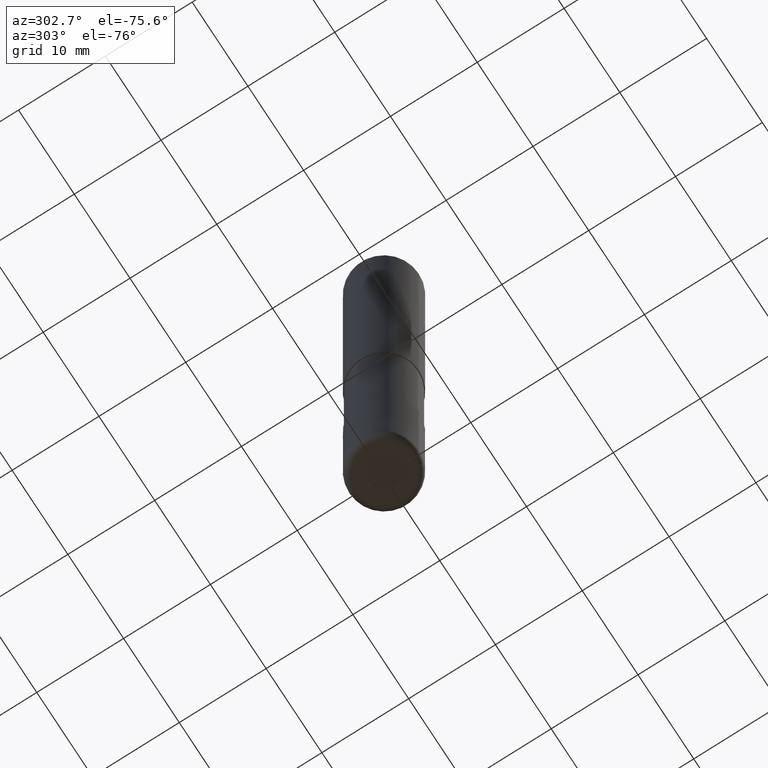
[diagram: clean part render]
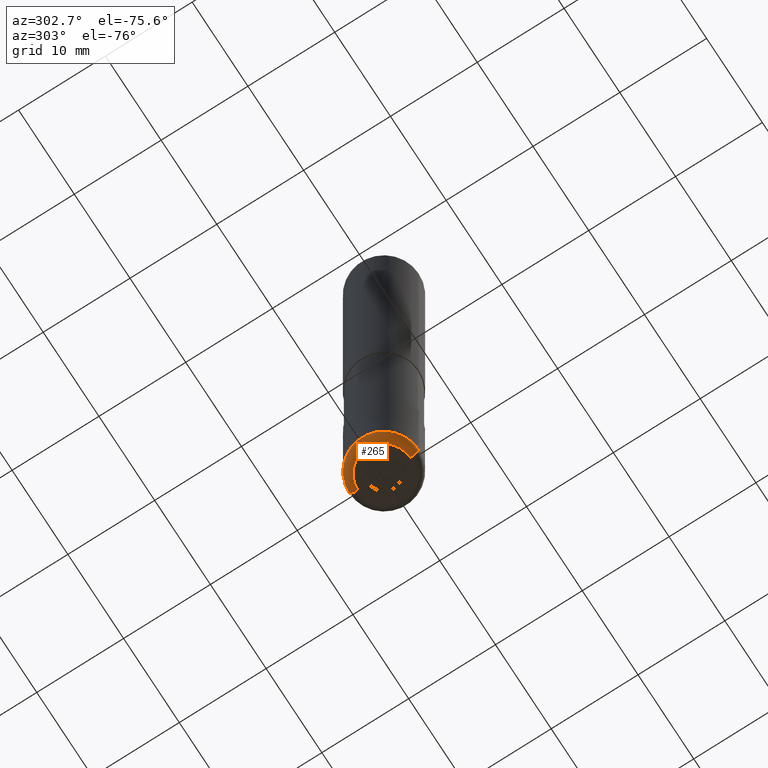
[diagram: same view with one face highlighted and labeled with its STEP entity id]
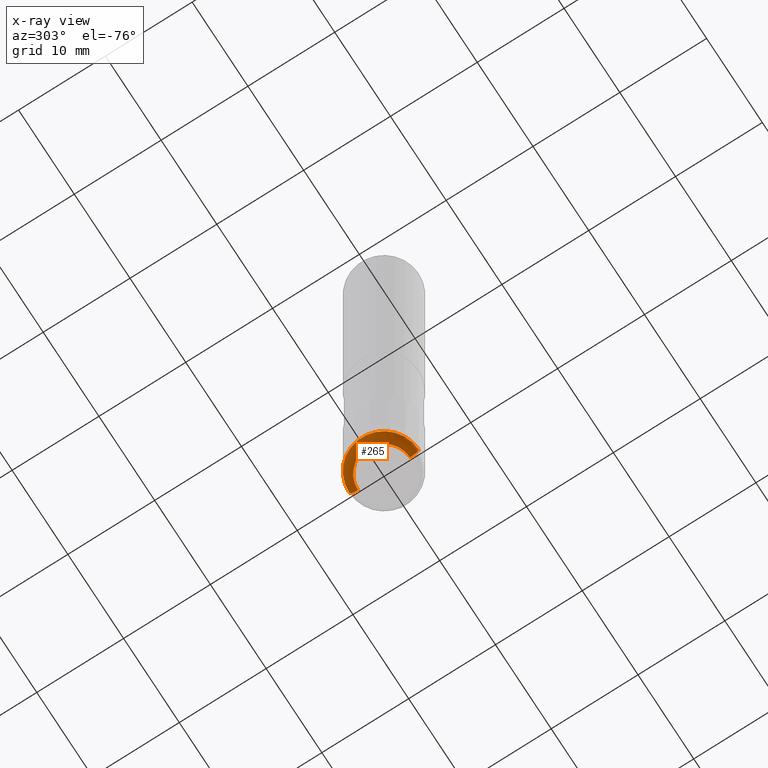
[diagram: x-ray of the same camera — body ghosted, the highlighted face saturated]
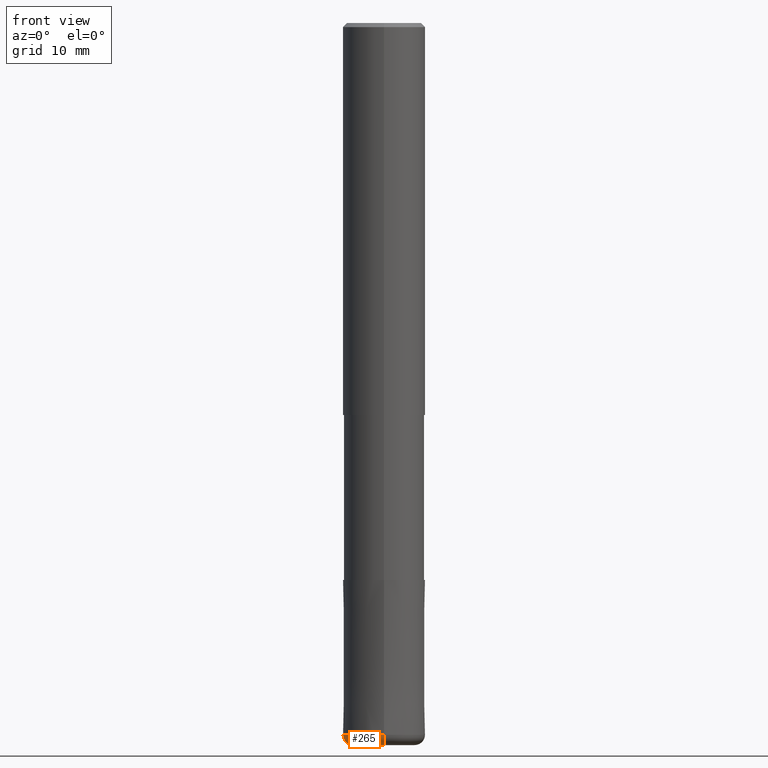
[diagram: same view with one face highlighted and labeled with its STEP entity id]
A machine part, auxiliary view. The second image highlights one B-rep face of the part: STEP entity #265.
The next image is the same camera in x-ray: the body ghosted, the highlighted face saturated — about 0% of this face is hidden behind the body in this view.
A second angle (front view) of the same face is appended — the face is thin or edge-on in the first view.
In plain terms, the highlighted toroidal blend (fillet) surface has major radius 3 mm and minor (blend) radius 1 mm.
Its self-contained STEP definition (entity closure, byte-faithful):
#125=EDGE_CURVE('',#189,#143,#313,.T.);
#143=VERTEX_POINT('',#332);
#189=VERTEX_POINT('',#386);
#227=EDGE_CURVE('',#189,#241,#428,.T.);
#241=VERTEX_POINT('',#447);
#257=VERTEX_POINT('',#466);
#265=ADVANCED_FACE('',(#474),#475,.T.);
#267=EDGE_CURVE('',#257,#143,#477,.T.);
#277=EDGE_CURVE('',#241,#257,#488,.T.);
#313=CIRCLE('',#516,4.0);
#332=CARTESIAN_POINT('',(0.0,4.0,-69.0));
#386=CARTESIAN_POINT('',(4.89842541528951E-016,-4.0,-69.0));
#428=CIRCLE('',#660,1.0);
#447=CARTESIAN_POINT('',(3.67381906146713E-016,-3.0,-70.0));
#466=CARTESIAN_POINT('',(0.0,3.0,-70.0));
#474=FACE_OUTER_BOUND('',#718,.T.);
#475=TOROIDAL_SURFACE('',#719,3.0,1.0);
#477=CIRCLE('',#722,1.0);
#488=CIRCLE('',#738,3.0);
#516=AXIS2_PLACEMENT_3D('',#756,#757,#758);
#660=AXIS2_PLACEMENT_3D('',#906,#907,#908);
#718=EDGE_LOOP('',(#964,#965,#966,#967));
#719=AXIS2_PLACEMENT_3D('',#968,#969,#970);
#722=AXIS2_PLACEMENT_3D('',#971,#972,#973);
#738=AXIS2_PLACEMENT_3D('',#989,#990,#991);
#756=CARTESIAN_POINT('',(0.0,0.0,-69.0));
#757=DIRECTION('',(0.0,0.0,-1.0));
#758=DIRECTION('',(0.0,1.0,0.0));
#906=CARTESIAN_POINT('',(3.67381906146713E-016,-3.0,-69.0));
#907=DIRECTION('',(1.0,1.22460635382238E-016,0.0));
#908=DIRECTION('',(1.22460635382238E-016,-1.0,-0.0));
#964=ORIENTED_EDGE('',*,*,#227,.F.);
#965=ORIENTED_EDGE('',*,*,#125,.T.);
#966=ORIENTED_EDGE('',*,*,#267,.F.);
#967=ORIENTED_EDGE('',*,*,#277,.F.);
#968=CARTESIAN_POINT('',(0.0,0.0,-69.0));
#969=DIRECTION('',(0.0,0.0,-1.0));
#970=DIRECTION('',(0.0,-1.0,0.0));
#971=CARTESIAN_POINT('',(-3.67381906146713E-016,3.0,-69.0));
#972=DIRECTION('',(1.0,1.22460635382238E-016,0.0));
#973=DIRECTION('',(-1.22460635382238E-016,1.0,0.0));
#989=CARTESIAN_POINT('',(0.0,0.0,-70.0));
#990=DIRECTION('',(0.0,0.0,-1.0));
#991=DIRECTION('',(0.0,1.0,0.0));